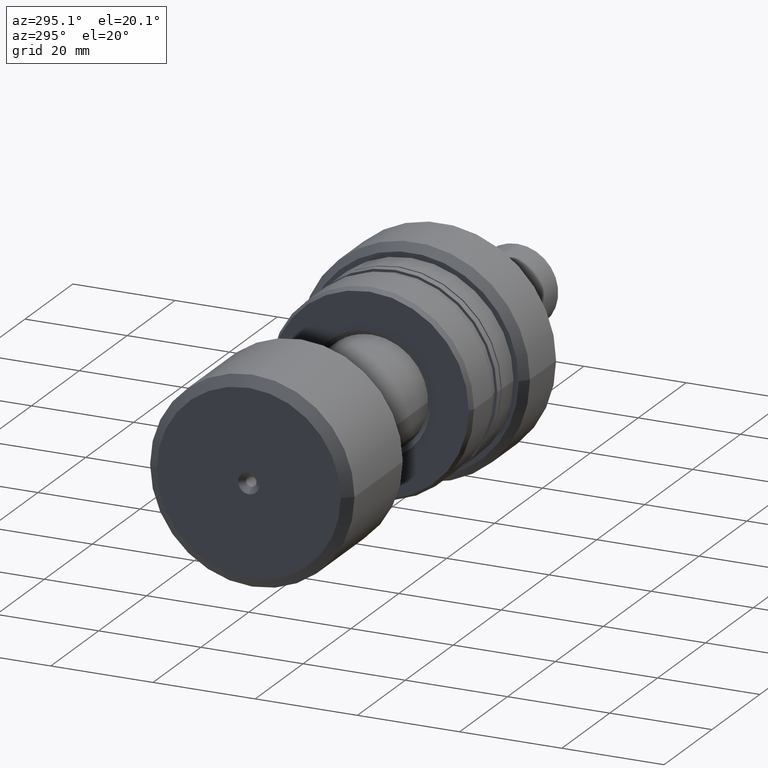
[diagram: clean part render]
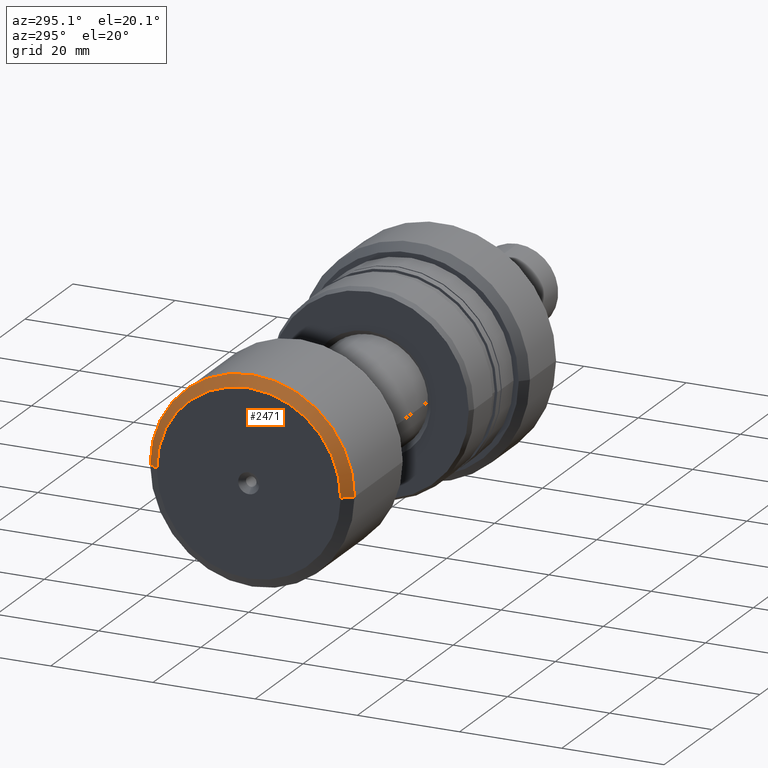
[diagram: same view with one face highlighted and labeled with its STEP entity id]
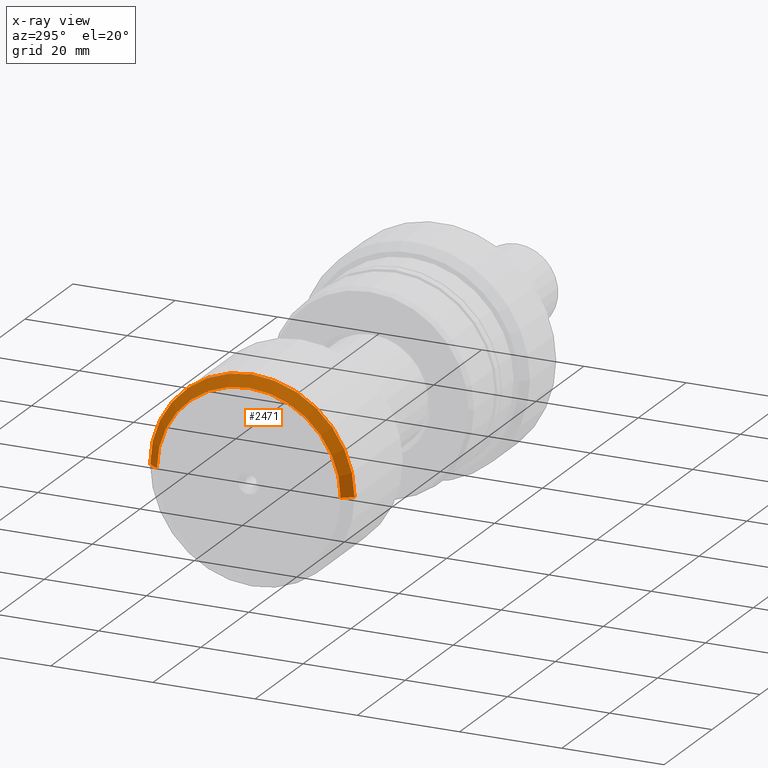
[diagram: x-ray of the same camera — body ghosted, the highlighted face saturated]
A machine part, auxiliary view. The second image highlights one B-rep face of the part: STEP entity #2471.
The next image is the same camera in x-ray: the body ghosted, the highlighted face saturated — about 0% of this face is hidden behind the body in this view.
In plain terms, the highlighted conical surface has half-angle 53.13 deg.
Its self-contained STEP definition (entity closure, byte-faithful):
#19 = AXIS2_PLACEMENT_3D ( 'NONE', #1932, #2362, #1066 ) ;
#28 = EDGE_CURVE ( 'NONE', #565, #997, #1489, .T. ) ;
#36 = CARTESIAN_POINT ( 'NONE',  ( 1.819329002520372041E-15, 18.00000000000000355, 0.000000000000000000 ) ) ;
#49 = CIRCLE ( 'NONE', #2101, 18.00000000000000355 ) ;
#118 = ORIENTED_EDGE ( 'NONE', *, *, #831, .F. ) ;
#322 = CARTESIAN_POINT ( 'NONE',  ( 1.500000000000002442, 20.00000000000000000, 0.000000000000000000 ) ) ;
#337 = FACE_OUTER_BOUND ( 'NONE', #2816, .T. ) ;
#373 = VERTEX_POINT ( 'NONE', #36 ) ;
#385 = DIRECTION ( 'NONE',  ( -1.000000000000000000, -1.069542322069065801E-17, -0.000000000000000000 ) ) ;
#400 = CARTESIAN_POINT ( 'NONE',  ( 2.204364238465235822E-15, -18.00000000000000355, 2.326828918379971365E-15 ) ) ;
#565 = VERTEX_POINT ( 'NONE', #400 ) ;
#567 = DIRECTION ( 'NONE',  ( 0.6000000000000005329, -0.7999999999999996003, 9.797174393178821220E-17 ) ) ;
#644 = EDGE_CURVE ( 'NONE', #373, #1905, #2826, .T. ) ;
#663 = EDGE_CURVE ( 'NONE', #997, #1905, #2707, .T. ) ;
#773 = CARTESIAN_POINT ( 'NONE',  ( 1.500000000000002887, -20.00000000000000000, 2.449293598294706513E-15 ) ) ;
#828 = CARTESIAN_POINT ( 'NONE',  ( 1.500000000000002442, 1.604313483103601552E-17, 0.000000000000000000 ) ) ;
#831 = EDGE_CURVE ( 'NONE', #565, #373, #49, .T. ) ;
#884 = CARTESIAN_POINT ( 'NONE',  ( 1.819329002520372041E-15, 18.00000000000000355, 0.000000000000000000 ) ) ;
#997 = VERTEX_POINT ( 'NONE', #773 ) ;
#1029 = AXIS2_PLACEMENT_3D ( 'NONE', #828, #385, #1336 ) ;
#1066 = DIRECTION ( 'NONE',  ( -1.069542322069065647E-17, 1.000000000000000000, 0.000000000000000000 ) ) ;
#1292 = CONICAL_SURFACE ( 'NONE', #19, 18.00000000000000355, 0.9272952180016115209 ) ;
#1336 = DIRECTION ( 'NONE',  ( 1.084202172485504434E-17, -1.000000000000000000, 0.000000000000000000 ) ) ;
#1339 = DIRECTION ( 'NONE',  ( -1.000000000000000000, -1.069542322069065801E-17, -0.000000000000000000 ) ) ;
#1363 = ORIENTED_EDGE ( 'NONE', *, *, #644, .F. ) ;
#1434 = ORIENTED_EDGE ( 'NONE', *, *, #28, .T. ) ;
#1489 = LINE ( 'NONE', #1694, #2753 ) ;
#1694 = CARTESIAN_POINT ( 'NONE',  ( 2.204364238465235822E-15, -18.00000000000000355, 2.204364238465235822E-15 ) ) ;
#1784 = VECTOR ( 'NONE', #2382, 1000.000000000000000 ) ;
#1905 = VERTEX_POINT ( 'NONE', #322 ) ;
#1932 = CARTESIAN_POINT ( 'NONE',  ( 2.011846620492804129E-15, 2.151755106128676308E-32, 0.000000000000000000 ) ) ;
#2008 = DIRECTION ( 'NONE',  ( 1.069542322069065647E-17, -1.000000000000000000, 0.000000000000000000 ) ) ;
#2086 = ORIENTED_EDGE ( 'NONE', *, *, #663, .T. ) ;
#2101 = AXIS2_PLACEMENT_3D ( 'NONE', #2463, #1339, #2008 ) ;
#2362 = DIRECTION ( 'NONE',  ( 1.000000000000000000, 1.069542322069065801E-17, 0.000000000000000000 ) ) ;
#2382 = DIRECTION ( 'NONE',  ( 0.6000000000000005329, 0.7999999999999996003, 0.000000000000000000 ) ) ;
#2463 = CARTESIAN_POINT ( 'NONE',  ( 2.011846620492804129E-15, 2.151755106128676308E-32, 0.000000000000000000 ) ) ;
#2471 = ADVANCED_FACE ( 'NONE', ( #337 ), #1292, .T. ) ;
#2707 = CIRCLE ( 'NONE', #1029, 20.00000000000000000 ) ;
#2753 = VECTOR ( 'NONE', #567, 1000.000000000000000 ) ;
#2816 = EDGE_LOOP ( 'NONE', ( #118, #1434, #2086, #1363 ) ) ;
#2826 = LINE ( 'NONE', #884, #1784 ) ;